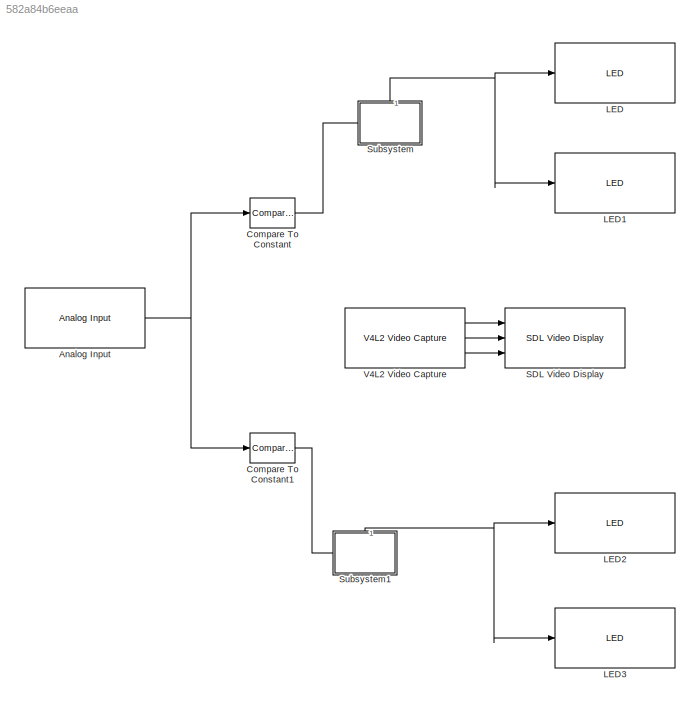
MODEL slx_582a84b6eeaa
KIND model
CONFIG AbsTol = auto
CONFIG EnableMultiTasking = on
CONFIG FixedStep = auto
CONFIG MaxStep = auto
CONFIG MinStep = auto
CONFIG RelTol = 1e-3
CONFIG SampleTimeConstraint = Unconstrained
CONFIG Solver = FixedStepAuto
CONFIG SolverName = FixedStepAuto
CONFIG StartTime = 0.0
CONFIG StopTime = 10.0
BLOCK [Reference] Analog Input  REF=ec_arm_cortex_a_lib/Analog Input
  Ports = [0, 1]
  SourceBlock = ec_arm_cortex_a_lib/Analog Input
  SourceType = Analog Input
BLOCK [Reference] Compare To Constant  REF=simulink/Logic and Bit
Operations/Compare
To Constant
  Ports = [1, 1]
  SourceBlock = simulink/Logic and Bit\nOperations/Compare\nTo Constant
  SourceType = Compare To Constant
BLOCK [Reference] Compare To Constant1  REF=simulink/Logic and Bit
Operations/Compare
To Constant
  Ports = [1, 1]
  SourceBlock = simulink/Logic and Bit\nOperations/Compare\nTo Constant
  SourceType = Compare To Constant
BLOCK [Reference] LED  REF=ec_arm_cortex_a_lib/LED
  Ports = [1]
  SourceBlock = ec_arm_cortex_a_lib/LED
  SourceType = LED Write
BLOCK [Reference] LED1  REF=ec_arm_cortex_a_lib/LED
  Ports = [1]
  SourceBlock = ec_arm_cortex_a_lib/LED
  SourceType = LED Write
BLOCK [Reference] LED2  REF=ec_arm_cortex_a_lib/LED
  Ports = [1]
  SourceBlock = ec_arm_cortex_a_lib/LED
  SourceType = LED Write
BLOCK [Reference] LED3  REF=ec_arm_cortex_a_lib/LED
  Ports = [1]
  SourceBlock = ec_arm_cortex_a_lib/LED
  SourceType = LED Write
BLOCK [Reference] SDL Video Display  REF=ec_arm_cortex_a_lib/SDL Video Display
  Ports = [3]
  SourceBlock = ec_arm_cortex_a_lib/SDL Video Display
  SourceType = SDL Video Display
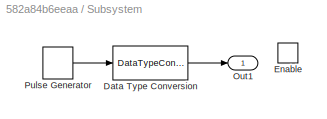
BLOCK [SubSystem] Subsystem
  Ports = [0, 1, 1]
  RequestExecContextInheritance = off
  Variant = off
BLOCK [DataTypeConversion] Subsystem/Data Type Conversion
  OutDataTypeStr = boolean
  RndMeth = Floor
  SaturateOnIntegerOverflow = off
BLOCK [EnablePort] Subsystem/Enable
  Ports = []
BLOCK [Outport] Subsystem/Out1
  IconDisplay = Port number
BLOCK [DiscretePulseGenerator] Subsystem/Pulse Generator
  Period = 1
  Ports = [0, 1]
  PulseType = Time based
  PulseWidth = 50
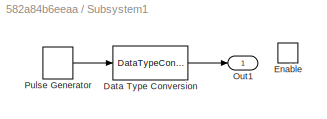
BLOCK [SubSystem] Subsystem1
  Ports = [0, 1, 1]
  RequestExecContextInheritance = off
  Variant = off
BLOCK [DataTypeConversion] Subsystem1/Data Type Conversion
  OutDataTypeStr = boolean
  RndMeth = Floor
  SaturateOnIntegerOverflow = off
BLOCK [EnablePort] Subsystem1/Enable
  Ports = []
BLOCK [Outport] Subsystem1/Out1
  IconDisplay = Port number
BLOCK [DiscretePulseGenerator] Subsystem1/Pulse Generator
  Period = 1
  Ports = [0, 1]
  PulseType = Time based
  PulseWidth = 50
BLOCK [Reference] V4L2 Video Capture  REF=ec_arm_cortex_a_lib/V4L2 Video Capture
  Ports = [0, 3]
  SourceBlock = ec_arm_cortex_a_lib/V4L2 Video Capture
  SourceType = V4L2 Video Capture
NET Analog Input:1 -> Compare To Constant1:1, Compare To Constant:1
LINE Compare To Constant1:1 -> Subsystem1:enable
LINE Compare To Constant:1 -> Subsystem:enable
LINE Subsystem/Data Type Conversion:1 -> Subsystem/Out1:1
LINE Subsystem/Pulse Generator:1 -> Subsystem/Data Type Conversion:1
LINE Subsystem1/Data Type Conversion:1 -> Subsystem1/Out1:1
LINE Subsystem1/Pulse Generator:1 -> Subsystem1/Data Type Conversion:1
NET Subsystem1:1 -> LED2:1, LED3:1
NET Subsystem:1 -> LED1:1, LED:1
LINE V4L2 Video Capture:1 -> SDL Video Display:1
LINE V4L2 Video Capture:2 -> SDL Video Display:2
LINE V4L2 Video Capture:3 -> SDL Video Display:3
note: NET lines group one-source signal fan-out (src -> all destinations, sorted); 1:1 wires keep LINE
